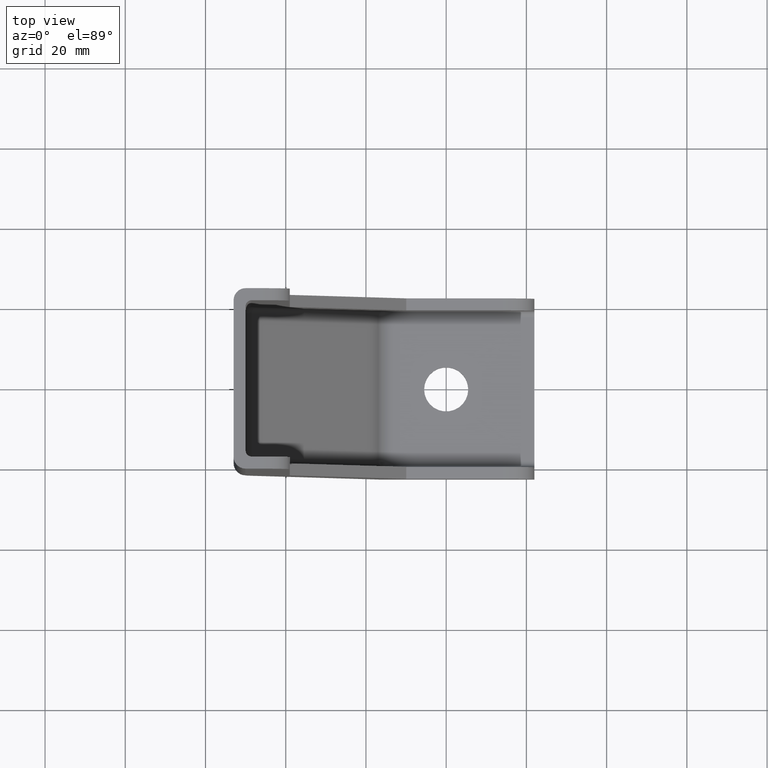
[diagram: clean part render]
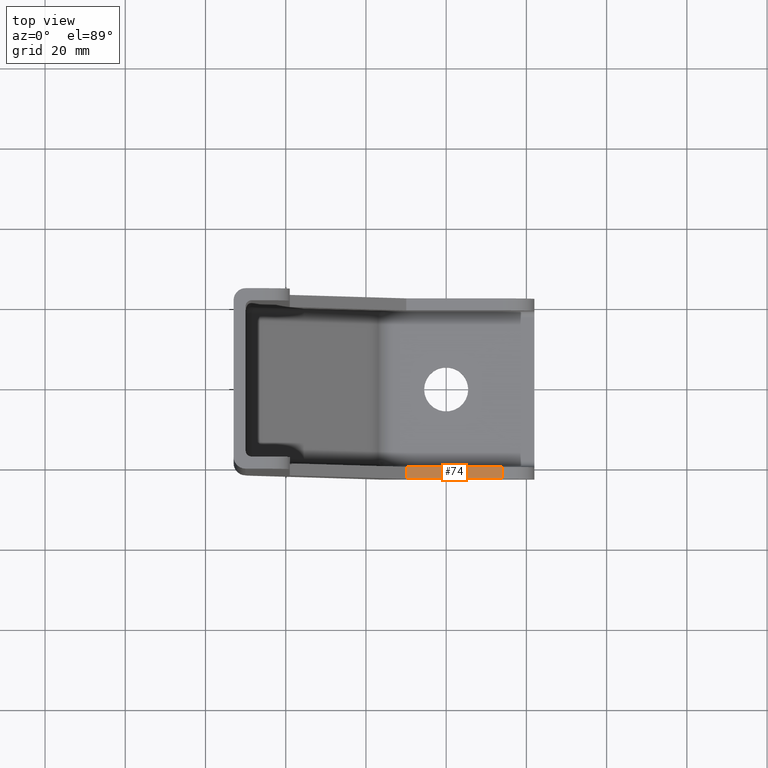
[diagram: same view with one face highlighted and labeled with its STEP entity id]
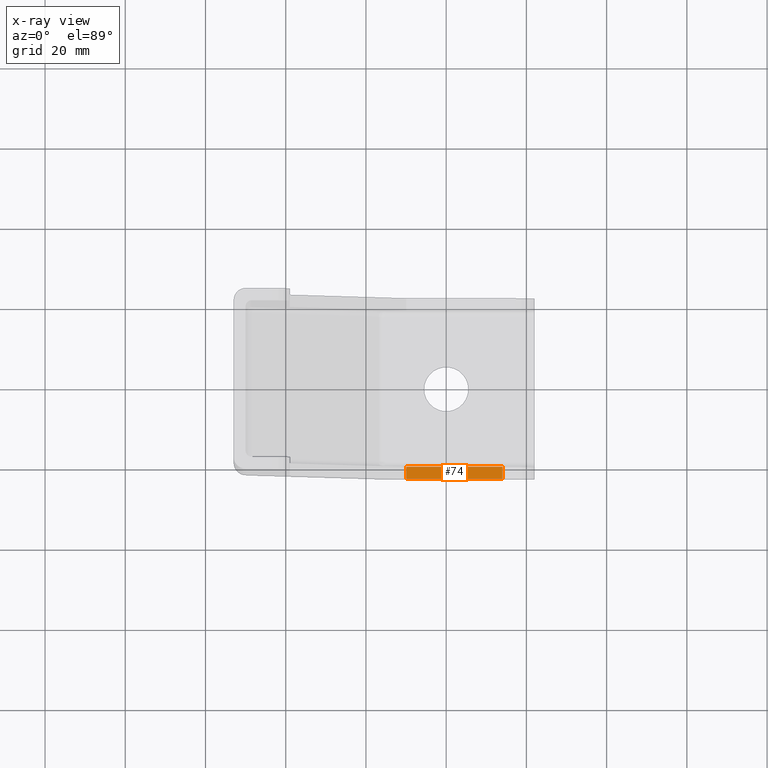
[diagram: x-ray of the same camera — body ghosted, the highlighted face saturated]
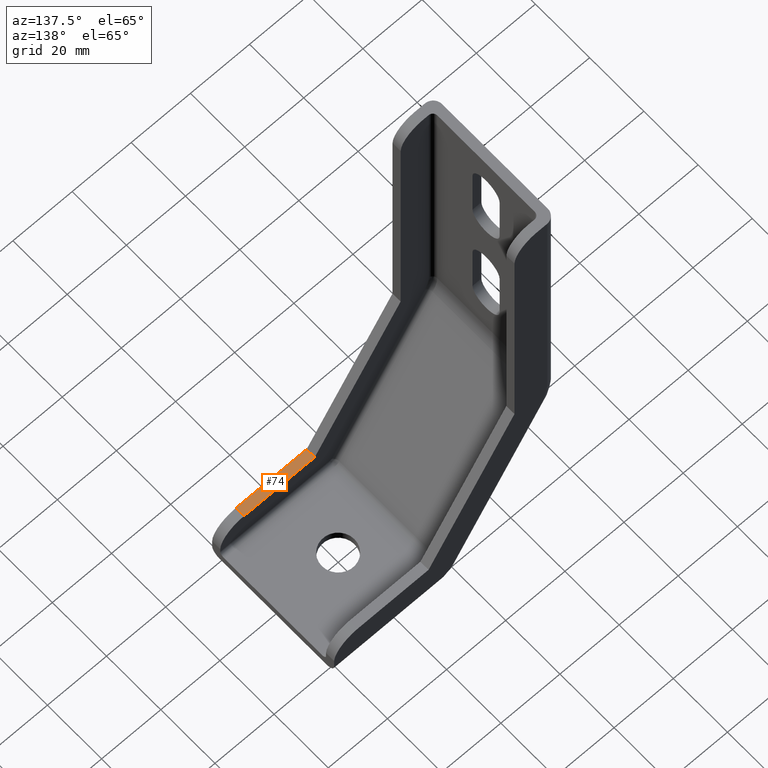
[diagram: same view with one face highlighted and labeled with its STEP entity id]
A machine part, top view. The second image highlights one B-rep face of the part: STEP entity #74.
The next image is the same camera in x-ray: the body ghosted, the highlighted face saturated — about 0% of this face is hidden behind the body in this view.
A second angle (auxiliary view) of the same face is appended — the face is thin or edge-on in the first view.
In plain terms, the highlighted planar face has unit normal (0, 0, -1).
Its self-contained STEP definition (entity closure, byte-faithful):
#17=CARTESIAN_POINT('',(13.999955999912345,-19.499907517413021,13.999971999944139));
#18=VERTEX_POINT('',#17);
#26=CARTESIAN_POINT('',(13.999955999912345,-22.499907517413021,13.999971999944139));
#27=VERTEX_POINT('',#26);
#28=CARTESIAN_POINT('',(13.999955999912345,-22.499907517413021,13.999971999944139));
#29=DIRECTION('',(0.0,1.0,0.0));
#30=VECTOR('',#29,3.0);
#31=LINE('',#28,#30);
#32=EDGE_CURVE('',#27,#18,#31,.T.);
#44=CARTESIAN_POINT('',(13.999955999912345,-22.499907517413021,13.999971999944139));
#45=DIRECTION('',(0.0,0.0,-1.0));
#46=DIRECTION('',(-1.0,0.0,0.0));
#47=AXIS2_PLACEMENT_3D('',#44,#45,#46);
#48=PLANE('',#47);
#49=ORIENTED_EDGE('',*,*,#32,.T.);
#50=CARTESIAN_POINT('',(-9.958795082330198,-19.499907517413021,13.999971999944139));
#51=VERTEX_POINT('',#50);
#52=CARTESIAN_POINT('',(13.999955999912345,-19.499907517413021,13.999971999944139));
#53=DIRECTION('',(-1.0,0.0,0.0));
#54=VECTOR('',#53,23.958751082242543);
#55=LINE('',#52,#54);
#56=EDGE_CURVE('',#18,#51,#55,.T.);
#57=ORIENTED_EDGE('',*,*,#56,.T.);
#58=CARTESIAN_POINT('',(-9.958795082330198,-22.499907517413021,13.999971999944139));
#59=VERTEX_POINT('',#58);
#60=CARTESIAN_POINT('',(-9.958795082330198,-22.499907517413021,13.999971999944139));
#61=DIRECTION('',(0.0,1.0,0.0));
#62=VECTOR('',#61,3.0);
#63=LINE('',#60,#62);
#64=EDGE_CURVE('',#59,#51,#63,.T.);
#65=ORIENTED_EDGE('',*,*,#64,.F.);
#66=CARTESIAN_POINT('',(13.999955999912345,-22.499907517413021,13.999971999944139));
#67=DIRECTION('',(-1.0,0.0,0.0));
#68=VECTOR('',#67,23.958751082242543);
#69=LINE('',#66,#68);
#70=EDGE_CURVE('',#27,#59,#69,.T.);
#71=ORIENTED_EDGE('',*,*,#70,.F.);
#72=EDGE_LOOP('',(#49,#57,#65,#71));
#73=FACE_OUTER_BOUND('',#72,.T.);
#74=ADVANCED_FACE('',(#73),#48,.F.);